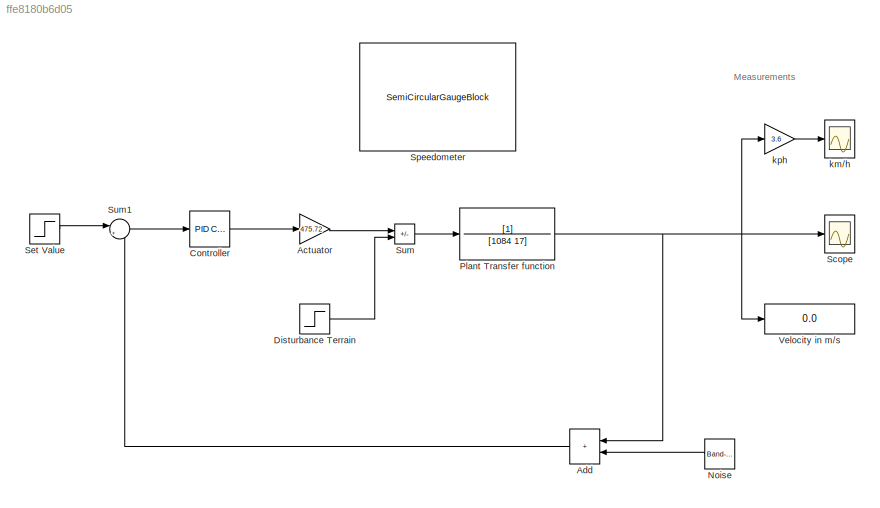
MODEL slx_ffe8180b6d05
KIND model
CONFIG AbsTol = auto
CONFIG EnableMultiTasking = off
CONFIG FixedStep = auto
CONFIG MaxStep = auto
CONFIG MinStep = auto
CONFIG RelTol = 1e-3
CONFIG SampleTimeConstraint = Unconstrained
CONFIG SolverName = VariableStepAuto
CONFIG StartTime = 0.0
CONFIG StopTime = 700
BLOCK [Reference]  Noise  REF=simulink/Sources/Band-Limited
White Noise
  NameLocation = top
  SourceBlock = simulink/Sources/Band-Limited\nWhite Noise
  SourceType = Band-Limited White Noise.
BLOCK [Gain] Actuator
  Gain = 475.72
BLOCK [Sum] Add
  IconShape = rectangular
  NameLocation = top
BLOCK [Reference] Controller  REF=slpidlib/PID Controller
  SourceBlock = slpidlib/PID Controller
  SourceType = PID 1dof
BLOCK [Step] Disturbance Terrain
  After = 475.72*9.81*sin(pi/45)
  SampleTime = 0
  Time = 350
BLOCK [TransferFcn] Plant Transfer function
  Denominator = [1084 17]
BLOCK [Scope] Scope
  Floating = off
  NumInputPorts = 1
  ScopeSpecificationString = Simulink.scopes.TimeScopeBlockCfg('CurrentConfiguration', extmgr.ConfigurationSet(extmgr.Configuration('Core','General UI',true,'FigureColor',[0.941176470588235 0.941176470588235 0.941176470588235]),extmgr.Configuration('Core','Source UI',true),extmgr.Configuration('Sources','WiredSimulink',true,'DataLoggingSaveFormat','Array','DataLoggingDecimation','1','DataLoggingDecimateData',true,'DataLogging...<+2589ch>
BLOCK [Step] Set Value
  After = 27.78
  SampleTime = 0
BLOCK [SemiCircularGaugeBlock] Speedometer
  ScaleMax = 220
BLOCK [Sum] Sum
  IconShape = rectangular
  Inputs = +-
BLOCK [Sum] Sum1
  Inputs = |+-
BLOCK [Display] Velocity in m//s
  Decimation = 1
BLOCK [Scope] km//h
  Floating = off
  NumInputPorts = 1
  ScopeSpecificationString = Simulink.scopes.TimeScopeBlockCfg('CurrentConfiguration', extmgr.ConfigurationSet(extmgr.Configuration('Core','General UI',true,'FigureColor',[0.941176470588235 0.941176470588235 0.941176470588235]),extmgr.Configuration('Core','Source UI',true),extmgr.Configuration('Sources','WiredSimulink',true,'DataLoggingSaveFormat','Array','DataLoggingDecimation','1','DataLoggingDecimateData',true),extmgr.Conf...<+2836ch>
BLOCK [Gain] kph
  Gain = 3.6
ANNOTATION (root): Measurements
LINE  Noise:1 -> Add:2
LINE Actuator:1 -> Sum:1
LINE Add:1 -> Sum1:2
LINE Controller:1 -> Actuator:1
LINE Disturbance Terrain:1 -> Sum:2
NET Plant Transfer function:1 -> Add:1, Scope:1, Velocity in m//s:1, kph:1
LINE Set Value:1 -> Sum1:1
LINE Sum1:1 -> Controller:1
LINE Sum:1 -> Plant Transfer function:1
LINE kph:1 -> km//h:1
note: NET lines group one-source signal fan-out (src -> all destinations, sorted); 1:1 wires keep LINE
